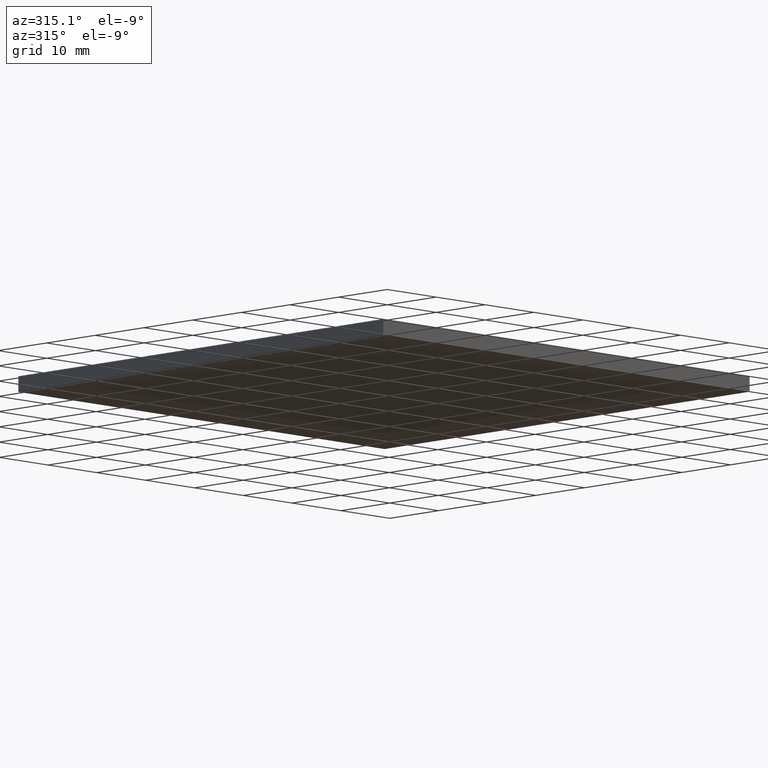
[diagram: clean part render]
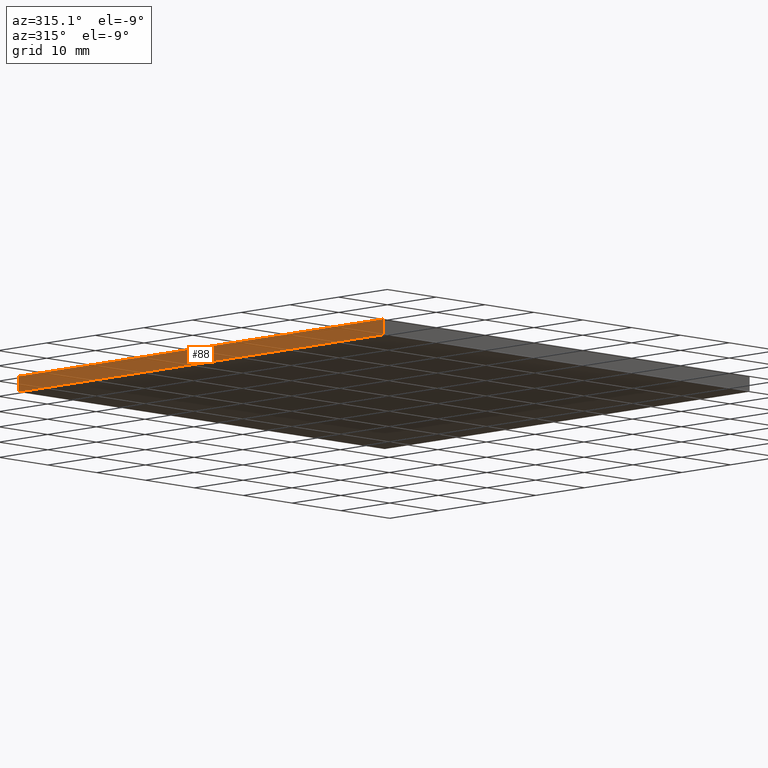
[diagram: same view with one face highlighted and labeled with its STEP entity id]
A machine part, auxiliary view. The second image highlights one B-rep face of the part: STEP entity #88.
In plain terms, the highlighted planar face has unit normal (1, -0, 0).
Its self-contained STEP definition (entity closure, byte-faithful):
#1 = PLANE ( 'NONE',  #106 ) ;
#4 = ORIENTED_EDGE ( 'NONE', *, *, #142, .F. ) ;
#16 = ORIENTED_EDGE ( 'NONE', *, *, #163, .T. ) ;
#27 = FACE_OUTER_BOUND ( 'NONE', #40, .T. ) ;
#33 = LINE ( 'NONE', #162, #202 ) ;
#36 = DIRECTION ( 'NONE',  ( 7.401486830834381200E-016, 1.000000000000000000, 0.0000000000000000000 ) ) ;
#38 = CARTESIAN_POINT ( 'NONE',  ( 266.2438073276553000, 222.1897255035797800, 2.299999999999999800 ) ) ;
#40 = EDGE_LOOP ( 'NONE', ( #16, #4, #160, #94 ) ) ;
#45 = DIRECTION ( 'NONE',  ( -7.401486830834381200E-016, -1.000000000000000000, 0.0000000000000000000 ) ) ;
#55 = VECTOR ( 'NONE', #72, 1000.000000000000000 ) ;
#57 = DIRECTION ( 'NONE',  ( -0.0000000000000000000, -0.0000000000000000000, -1.000000000000000000 ) ) ;
#72 = DIRECTION ( 'NONE',  ( -0.0000000000000000000, -0.0000000000000000000, -1.000000000000000000 ) ) ;
#77 = LINE ( 'NONE', #153, #55 ) ;
#79 = EDGE_CURVE ( 'NONE', #201, #170, #33, .T. ) ;
#88 = ADVANCED_FACE ( 'NONE', ( #27 ), #1, .F. ) ;
#94 = ORIENTED_EDGE ( 'NONE', *, *, #79, .T. ) ;
#100 = EDGE_CURVE ( 'NONE', #201, #140, #171, .T. ) ;
#101 = CARTESIAN_POINT ( 'NONE',  ( 266.2438073276553000, 222.1897255035797800, 0.0000000000000000000 ) ) ;
#102 = CARTESIAN_POINT ( 'NONE',  ( 266.2438073276553000, 222.1897255035797800, 2.299999999999999800 ) ) ;
#106 = AXIS2_PLACEMENT_3D ( 'NONE', #38, #112, #36 ) ;
#112 = DIRECTION ( 'NONE',  ( 1.000000000000000000, -7.401486830834381200E-016, 0.0000000000000000000 ) ) ;
#114 = DIRECTION ( 'NONE',  ( -7.401486830834381200E-016, -1.000000000000000000, 0.0000000000000000000 ) ) ;
#132 = VECTOR ( 'NONE', #45, 1000.000000000000000 ) ;
#137 = LINE ( 'NONE', #181, #132 ) ;
#138 = VERTEX_POINT ( 'NONE', #198 ) ;
#140 = VERTEX_POINT ( 'NONE', #165 ) ;
#142 = EDGE_CURVE ( 'NONE', #140, #138, #77, .T. ) ;
#143 = CARTESIAN_POINT ( 'NONE',  ( 266.2438073276553000, 222.1897255035797800, 2.299999999999999800 ) ) ;
#153 = CARTESIAN_POINT ( 'NONE',  ( 266.2438073276552500, 147.1897255035798100, 2.299999999999999800 ) ) ;
#157 = VECTOR ( 'NONE', #114, 1000.000000000000000 ) ;
#160 = ORIENTED_EDGE ( 'NONE', *, *, #100, .F. ) ;
#162 = CARTESIAN_POINT ( 'NONE',  ( 266.2438073276553000, 222.1897255035797800, 2.299999999999999800 ) ) ;
#163 = EDGE_CURVE ( 'NONE', #170, #138, #137, .T. ) ;
#165 = CARTESIAN_POINT ( 'NONE',  ( 266.2438073276552500, 147.1897255035798100, 2.299999999999999800 ) ) ;
#170 = VERTEX_POINT ( 'NONE', #101 ) ;
#171 = LINE ( 'NONE', #143, #157 ) ;
#181 = CARTESIAN_POINT ( 'NONE',  ( 266.2438073276553000, 222.1897255035797800, 0.0000000000000000000 ) ) ;
#198 = CARTESIAN_POINT ( 'NONE',  ( 266.2438073276552500, 147.1897255035798100, 0.0000000000000000000 ) ) ;
#201 = VERTEX_POINT ( 'NONE', #102 ) ;
#202 = VECTOR ( 'NONE', #57, 1000.000000000000000 ) ;